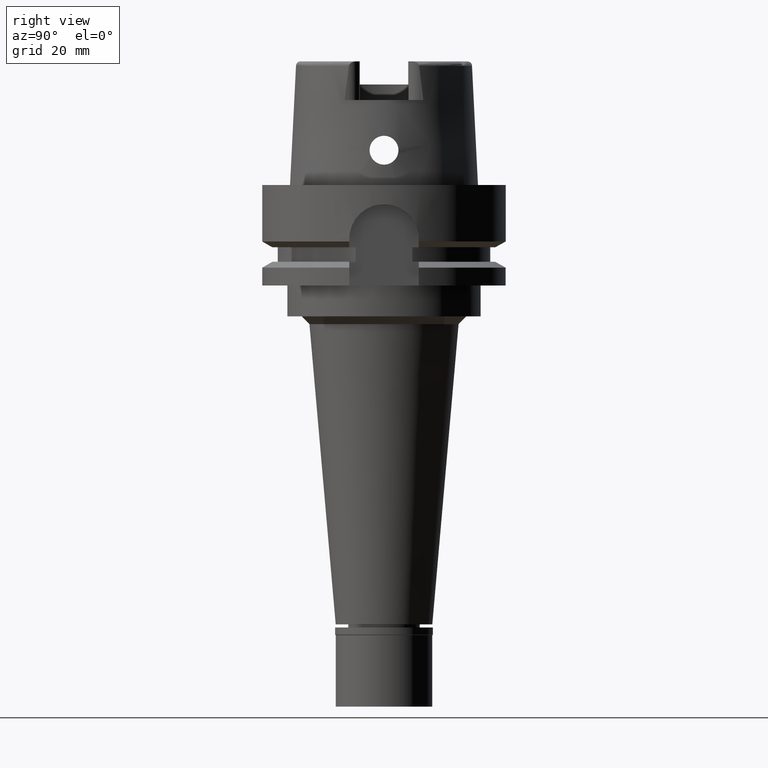
[diagram: clean part render]
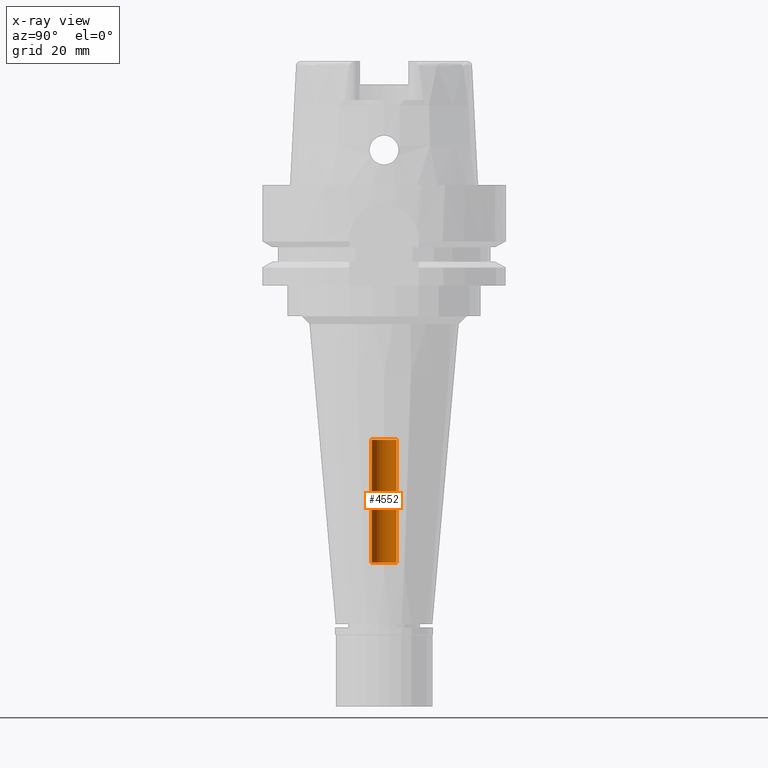
[diagram: x-ray — body ghosted, one internal face saturated and labeled with its STEP entity id]
A machine part, right view, then the same camera in x-ray: the body is ghosted and one INTERNAL B-rep face — a face not visible from any outside direction — is saturated and labeled: STEP entity #4552.
In plain terms, the highlighted cylindrical surface (edge-blend (fillet) strip) has radius 3.2 mm, axis along (0, 0, 1).
Its self-contained STEP definition (entity closure, byte-faithful):
#111 = EDGE_CURVE ( 'NONE', #4924, #2298, #216, .T. ) ;
#216 = CIRCLE ( 'NONE', #2326, 3.200000000000000178 ) ;
#602 = EDGE_LOOP ( 'NONE', ( #1936, #5187, #1599, #4046 ) ) ;
#1018 = DIRECTION ( 'NONE',  ( 0.0000000000000000000, 0.0000000000000000000, 1.000000000000000000 ) ) ;
#1099 = DIRECTION ( 'NONE',  ( 0.0000000000000000000, 0.0000000000000000000, 1.000000000000000000 ) ) ;
#1115 = CARTESIAN_POINT ( 'NONE',  ( 0.0000000000000000000, 0.0000000000000000000, -97.79999999999999716 ) ) ;
#1190 = CARTESIAN_POINT ( 'NONE',  ( 0.0000000000000000000, -3.200000000000000178, -97.79999999999999716 ) ) ;
#1324 = DIRECTION ( 'NONE',  ( 0.0000000000000000000, 1.000000000000000000, 0.0000000000000000000 ) ) ;
#1482 = LINE ( 'NONE', #3176, #1526 ) ;
#1526 = VECTOR ( 'NONE', #1099, 1000.000000000000000 ) ;
#1599 = ORIENTED_EDGE ( 'NONE', *, *, #4226, .T. ) ;
#1936 = ORIENTED_EDGE ( 'NONE', *, *, #111, .T. ) ;
#1968 = CIRCLE ( 'NONE', #4522, 3.200000000000000178 ) ;
#2298 = VERTEX_POINT ( 'NONE', #2338 ) ;
#2314 = DIRECTION ( 'NONE',  ( 0.0000000000000000000, 0.0000000000000000000, -1.000000000000000000 ) ) ;
#2326 = AXIS2_PLACEMENT_3D ( 'NONE', #3954, #1018, #2664 ) ;
#2338 = CARTESIAN_POINT ( 'NONE',  ( 0.0000000000000000000, -3.200000000000000178, -65.94999999999998863 ) ) ;
#2664 = DIRECTION ( 'NONE',  ( 0.0000000000000000000, 1.000000000000000000, 0.0000000000000000000 ) ) ;
#2704 = DIRECTION ( 'NONE',  ( 0.0000000000000000000, 0.0000000000000000000, 1.000000000000000000 ) ) ;
#3037 = LINE ( 'NONE', #4785, #3297 ) ;
#3176 = CARTESIAN_POINT ( 'NONE',  ( 0.0000000000000000000, -3.200000000000000178, -97.79999999999999716 ) ) ;
#3297 = VECTOR ( 'NONE', #2704, 1000.000000000000000 ) ;
#3428 = FACE_OUTER_BOUND ( 'NONE', #602, .T. ) ;
#3444 = VERTEX_POINT ( 'NONE', #1190 ) ;
#3453 = CYLINDRICAL_SURFACE ( 'NONE', #4956, 3.200000000000000178 ) ;
#3672 = EDGE_CURVE ( 'NONE', #3790, #4924, #3037, .T. ) ;
#3692 = CARTESIAN_POINT ( 'NONE',  ( 0.0000000000000000000, 3.200000000000000178, -65.94999999999998863 ) ) ;
#3790 = VERTEX_POINT ( 'NONE', #5368 ) ;
#3940 = CARTESIAN_POINT ( 'NONE',  ( 0.0000000000000000000, 0.0000000000000000000, 0.0000000000000000000 ) ) ;
#3954 = CARTESIAN_POINT ( 'NONE',  ( 0.0000000000000000000, 0.0000000000000000000, -65.94999999999998863 ) ) ;
#4046 = ORIENTED_EDGE ( 'NONE', *, *, #3672, .T. ) ;
#4226 = EDGE_CURVE ( 'NONE', #3444, #3790, #1968, .T. ) ;
#4522 = AXIS2_PLACEMENT_3D ( 'NONE', #1115, #2314, #5272 ) ;
#4552 = ADVANCED_FACE ( 'NONE', ( #3428 ), #3453, .F. ) ;
#4785 = CARTESIAN_POINT ( 'NONE',  ( 0.0000000000000000000, 3.200000000000000178, -97.79999999999999716 ) ) ;
#4924 = VERTEX_POINT ( 'NONE', #3692 ) ;
#4956 = AXIS2_PLACEMENT_3D ( 'NONE', #3940, #5095, #1324 ) ;
#5095 = DIRECTION ( 'NONE',  ( 0.0000000000000000000, 0.0000000000000000000, 1.000000000000000000 ) ) ;
#5187 = ORIENTED_EDGE ( 'NONE', *, *, #5200, .F. ) ;
#5200 = EDGE_CURVE ( 'NONE', #3444, #2298, #1482, .T. ) ;
#5272 = DIRECTION ( 'NONE',  ( 0.0000000000000000000, -1.000000000000000000, 0.0000000000000000000 ) ) ;
#5368 = CARTESIAN_POINT ( 'NONE',  ( 0.0000000000000000000, 3.200000000000000178, -97.79999999999999716 ) ) ;